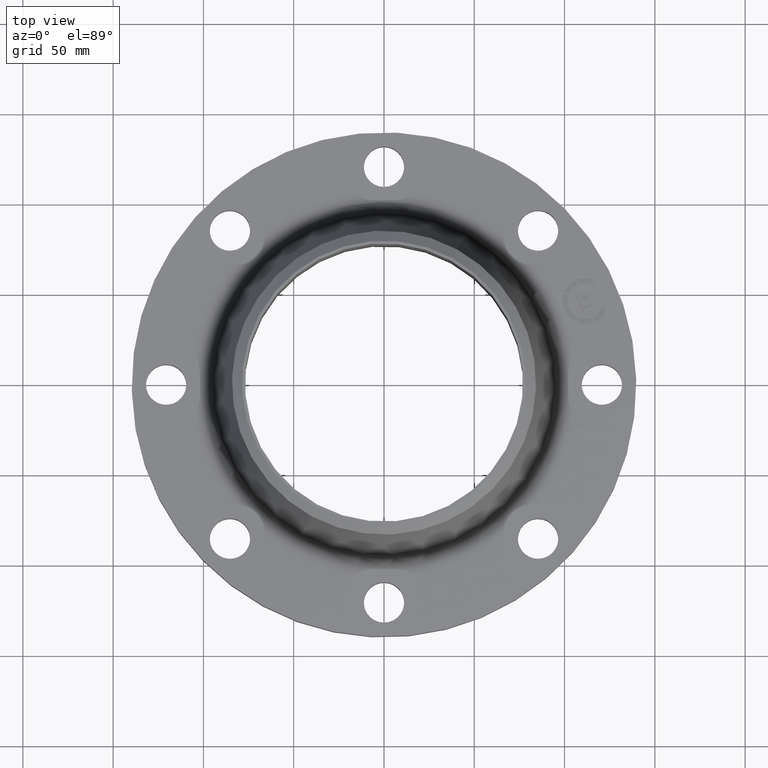
[diagram: clean part render]
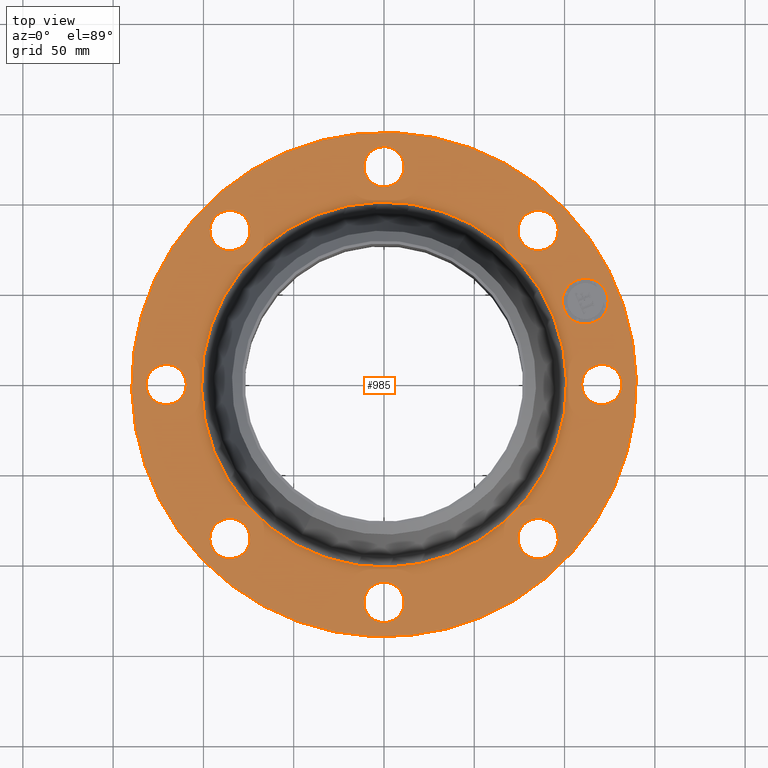
[diagram: same view with one face highlighted and labeled with its STEP entity id]
A machine part, top view. The second image highlights one B-rep face of the part: STEP entity #985.
In plain terms, the highlighted planar face has unit normal (0, 0, -1).
Its self-contained STEP definition (entity closure, byte-faithful):
#65=AXIS2_PLACEMENT_3D('Circle Axis2P3D',#63,#64,$) ;
#82=AXIS2_PLACEMENT_3D('Circle Axis2P3D',#80,#81,$) ;
#115=AXIS2_PLACEMENT_3D('Circle Axis2P3D',#113,#114,$) ;
#139=AXIS2_PLACEMENT_3D('Circle Axis2P3D',#137,#138,$) ;
#156=AXIS2_PLACEMENT_3D('Circle Axis2P3D',#154,#155,$) ;
#191=AXIS2_PLACEMENT_3D('Circle Axis2P3D',#189,#190,$) ;
#642=AXIS2_PLACEMENT_3D('Circle Axis2P3D',#640,#641,$) ;
#654=AXIS2_PLACEMENT_3D('Circle Axis2P3D',#652,#653,$) ;
#685=AXIS2_PLACEMENT_3D('Circle Axis2P3D',#683,#684,$) ;
#697=AXIS2_PLACEMENT_3D('Circle Axis2P3D',#695,#696,$) ;
#728=AXIS2_PLACEMENT_3D('Circle Axis2P3D',#726,#727,$) ;
#740=AXIS2_PLACEMENT_3D('Circle Axis2P3D',#738,#739,$) ;
#771=AXIS2_PLACEMENT_3D('Circle Axis2P3D',#769,#770,$) ;
#783=AXIS2_PLACEMENT_3D('Circle Axis2P3D',#781,#782,$) ;
#814=AXIS2_PLACEMENT_3D('Circle Axis2P3D',#812,#813,$) ;
#826=AXIS2_PLACEMENT_3D('Circle Axis2P3D',#824,#825,$) ;
#857=AXIS2_PLACEMENT_3D('Circle Axis2P3D',#855,#856,$) ;
#869=AXIS2_PLACEMENT_3D('Circle Axis2P3D',#867,#868,$) ;
#900=AXIS2_PLACEMENT_3D('Circle Axis2P3D',#898,#899,$) ;
#912=AXIS2_PLACEMENT_3D('Circle Axis2P3D',#910,#911,$) ;
#925=AXIS2_PLACEMENT_3D('Plane Axis2P3D',#922,#923,#924) ;
#969=AXIS2_PLACEMENT_3D('Circle Axis2P3D',#967,#968,$) ;
#978=AXIS2_PLACEMENT_3D('Circle Axis2P3D',#976,#977,$) ;
#46=CARTESIAN_POINT('Vertex',(4.36386367279,0.210947236987,1.)) ;
#60=CARTESIAN_POINT('Vertex',(5.13613632725,-0.210947236987,1.)) ;
#63=CARTESIAN_POINT('Axis2P3D Location',(4.75000000002,0.,1.)) ;
#80=CARTESIAN_POINT('Axis2P3D Location',(4.75000000002,0.,1.)) ;
#110=CARTESIAN_POINT('Vertex',(-2.63684046233,-4.82670409042,1.)) ;
#113=CARTESIAN_POINT('Axis2P3D Location',(0.,0.,1.)) ;
#117=CARTESIAN_POINT('Vertex',(2.63684046233,4.82670409042,1.)) ;
#137=CARTESIAN_POINT('Axis2P3D Location',(0.,0.,1.)) ;
#154=CARTESIAN_POINT('Axis2P3D Location',(0.,0.,1.)) ;
#158=CARTESIAN_POINT('Vertex',(1.90839849494,3.49330001312,1.)) ;
#160=CARTESIAN_POINT('Vertex',(-1.90839849494,-3.49330001312,1.)) ;
#189=CARTESIAN_POINT('Axis2P3D Location',(0.,0.,1.)) ;
#630=CARTESIAN_POINT('Vertex',(-3.23487981695,2.93655537345,1.)) ;
#637=CARTESIAN_POINT('Vertex',(-3.48263460435,3.78095904784,1.)) ;
#640=CARTESIAN_POINT('Axis2P3D Location',(-3.35875721065,3.35875721065,1.)) ;
#652=CARTESIAN_POINT('Axis2P3D Location',(-3.35875721065,3.35875721065,1.)) ;
#673=CARTESIAN_POINT('Vertex',(0.210947236987,-4.36386367279,1.)) ;
#680=CARTESIAN_POINT('Vertex',(-0.210947236987,-5.13613632725,1.)) ;
#683=CARTESIAN_POINT('Axis2P3D Location',(2.90853614799E-016,-4.75000000002,1.)) ;
#695=CARTESIAN_POINT('Axis2P3D Location',(2.90853614799E-016,-4.75000000002,1.)) ;
#716=CARTESIAN_POINT('Vertex',(-0.210947236987,4.36386367279,1.)) ;
#723=CARTESIAN_POINT('Vertex',(0.210947236987,5.13613632725,1.)) ;
#726=CARTESIAN_POINT('Axis2P3D Location',(-8.72560844396E-016,4.75000000002,1.)) ;
#738=CARTESIAN_POINT('Axis2P3D Location',(-8.72560844396E-016,4.75000000002,1.)) ;
#759=CARTESIAN_POINT('Vertex',(-2.93655537345,-3.23487981695,1.)) ;
#766=CARTESIAN_POINT('Vertex',(-3.78095904784,-3.48263460435,1.)) ;
#769=CARTESIAN_POINT('Axis2P3D Location',(-3.35875721065,-3.35875721065,1.)) ;
#781=CARTESIAN_POINT('Axis2P3D Location',(-3.35875721065,-3.35875721065,1.)) ;
#802=CARTESIAN_POINT('Vertex',(2.93655537345,3.23487981695,1.)) ;
#809=CARTESIAN_POINT('Vertex',(3.78095904784,3.48263460435,1.)) ;
#812=CARTESIAN_POINT('Axis2P3D Location',(3.35875721065,3.35875721065,1.)) ;
#824=CARTESIAN_POINT('Axis2P3D Location',(3.35875721065,3.35875721065,1.)) ;
#845=CARTESIAN_POINT('Vertex',(-4.36386367279,-0.210947236987,1.)) ;
#852=CARTESIAN_POINT('Vertex',(-5.13613632725,0.210947236987,1.)) ;
#855=CARTESIAN_POINT('Axis2P3D Location',(-4.75000000002,-5.81707229597E-016,1.)) ;
#867=CARTESIAN_POINT('Axis2P3D Location',(-4.75000000002,-5.81707229597E-016,1.)) ;
#888=CARTESIAN_POINT('Vertex',(3.23487981695,-2.93655537345,1.)) ;
#895=CARTESIAN_POINT('Vertex',(3.48263460435,-3.78095904784,1.)) ;
#898=CARTESIAN_POINT('Axis2P3D Location',(3.35875721065,-3.35875721065,1.)) ;
#910=CARTESIAN_POINT('Axis2P3D Location',(3.35875721065,-3.35875721065,1.)) ;
#922=CARTESIAN_POINT('Axis2P3D Location',(0.,5.50000000002,1.)) ;
#967=CARTESIAN_POINT('Axis2P3D Location',(4.38842777945,1.81774630374,1.)) ;
#971=CARTESIAN_POINT('Vertex',(4.19708650182,2.27968501123,1.)) ;
#973=CARTESIAN_POINT('Vertex',(4.57976905707,1.35580759625,1.)) ;
#976=CARTESIAN_POINT('Axis2P3D Location',(4.38842777945,1.81774630374,1.)) ;
#64=DIRECTION('Axis2P3D Direction',(0.,-0.,-0.0393700787402)) ;
#81=DIRECTION('Axis2P3D Direction',(0.,-0.,-0.0393700787402)) ;
#114=DIRECTION('Axis2P3D Direction',(0.,0.,-0.0393700787402)) ;
#138=DIRECTION('Axis2P3D Direction',(0.,0.,-0.0393700787402)) ;
#155=DIRECTION('Axis2P3D Direction',(0.,0.,-0.0393700787402)) ;
#190=DIRECTION('Axis2P3D Direction',(0.,0.,-0.0393700787402)) ;
#641=DIRECTION('Axis2P3D Direction',(0.,0.,-0.0393700787402)) ;
#653=DIRECTION('Axis2P3D Direction',(0.,0.,-0.0393700787402)) ;
#684=DIRECTION('Axis2P3D Direction',(0.,-0.,-0.0393700787402)) ;
#696=DIRECTION('Axis2P3D Direction',(0.,-0.,-0.0393700787402)) ;
#727=DIRECTION('Axis2P3D Direction',(0.,0.,-0.0393700787402)) ;
#739=DIRECTION('Axis2P3D Direction',(0.,0.,-0.0393700787402)) ;
#770=DIRECTION('Axis2P3D Direction',(-0.,0.,-0.0393700787402)) ;
#782=DIRECTION('Axis2P3D Direction',(-0.,0.,-0.0393700787402)) ;
#813=DIRECTION('Axis2P3D Direction',(0.,0.,-0.0393700787402)) ;
#825=DIRECTION('Axis2P3D Direction',(0.,0.,-0.0393700787402)) ;
#856=DIRECTION('Axis2P3D Direction',(-0.,0.,-0.0393700787402)) ;
#868=DIRECTION('Axis2P3D Direction',(-0.,0.,-0.0393700787402)) ;
#899=DIRECTION('Axis2P3D Direction',(0.,-0.,-0.0393700787402)) ;
#911=DIRECTION('Axis2P3D Direction',(0.,-0.,-0.0393700787402)) ;
#923=DIRECTION('Axis2P3D Direction',(0.,0.,-0.0393700787402)) ;
#924=DIRECTION('Axis2P3D XDirection',(0.0393700787402,0.,0.)) ;
#968=DIRECTION('Axis2P3D Direction',(0.,0.,-0.0393700787402)) ;
#977=DIRECTION('Axis2P3D Direction',(0.,0.,-0.0393700787402)) ;
#928=ORIENTED_EDGE('',*,*,#141,.F.) ;
#929=ORIENTED_EDGE('',*,*,#119,.F.) ;
#932=ORIENTED_EDGE('',*,*,#67,.T.) ;
#933=ORIENTED_EDGE('',*,*,#84,.T.) ;
#936=ORIENTED_EDGE('',*,*,#193,.T.) ;
#937=ORIENTED_EDGE('',*,*,#162,.T.) ;
#940=ORIENTED_EDGE('',*,*,#914,.T.) ;
#941=ORIENTED_EDGE('',*,*,#902,.T.) ;
#944=ORIENTED_EDGE('',*,*,#699,.T.) ;
#945=ORIENTED_EDGE('',*,*,#687,.T.) ;
#948=ORIENTED_EDGE('',*,*,#785,.T.) ;
#949=ORIENTED_EDGE('',*,*,#773,.T.) ;
#952=ORIENTED_EDGE('',*,*,#871,.T.) ;
#953=ORIENTED_EDGE('',*,*,#859,.T.) ;
#956=ORIENTED_EDGE('',*,*,#656,.T.) ;
#957=ORIENTED_EDGE('',*,*,#644,.T.) ;
#960=ORIENTED_EDGE('',*,*,#742,.T.) ;
#961=ORIENTED_EDGE('',*,*,#730,.T.) ;
#964=ORIENTED_EDGE('',*,*,#828,.T.) ;
#965=ORIENTED_EDGE('',*,*,#816,.T.) ;
#982=ORIENTED_EDGE('',*,*,#975,.T.) ;
#983=ORIENTED_EDGE('',*,*,#980,.T.) ;
#934=FACE_BOUND('',#931,.T.) ;
#938=FACE_BOUND('',#935,.T.) ;
#942=FACE_BOUND('',#939,.T.) ;
#946=FACE_BOUND('',#943,.T.) ;
#950=FACE_BOUND('',#947,.T.) ;
#954=FACE_BOUND('',#951,.T.) ;
#958=FACE_BOUND('',#955,.T.) ;
#962=FACE_BOUND('',#959,.T.) ;
#966=FACE_BOUND('',#963,.T.) ;
#984=FACE_BOUND('',#981,.T.) ;
#985=ADVANCED_FACE('PartBody',(#930,#934,#938,#942,#946,#950,#954,#958,#962,#966,#984),#926,.F.) ;
#66=CIRCLE('generated circle',#65,0.440000000002) ;
#83=CIRCLE('generated circle',#82,0.440000000002) ;
#116=CIRCLE('generated circle',#115,5.50000000002) ;
#140=CIRCLE('generated circle',#139,5.50000000002) ;
#157=CIRCLE('generated circle',#156,3.98059415128) ;
#192=CIRCLE('generated circle',#191,3.98059415128) ;
#643=CIRCLE('generated circle',#642,0.440000000002) ;
#655=CIRCLE('generated circle',#654,0.440000000002) ;
#686=CIRCLE('generated circle',#685,0.440000000002) ;
#698=CIRCLE('generated circle',#697,0.440000000002) ;
#729=CIRCLE('generated circle',#728,0.440000000002) ;
#741=CIRCLE('generated circle',#740,0.440000000002) ;
#772=CIRCLE('generated circle',#771,0.440000000002) ;
#784=CIRCLE('generated circle',#783,0.440000000002) ;
#815=CIRCLE('generated circle',#814,0.440000000002) ;
#827=CIRCLE('generated circle',#826,0.440000000002) ;
#858=CIRCLE('generated circle',#857,0.440000000002) ;
#870=CIRCLE('generated circle',#869,0.440000000002) ;
#901=CIRCLE('generated circle',#900,0.440000000002) ;
#913=CIRCLE('generated circle',#912,0.440000000002) ;
#970=CIRCLE('generated circle',#969,0.499998853999) ;
#979=CIRCLE('generated circle',#978,0.499998853999) ;
#67=EDGE_CURVE('',#47,#61,#66,.T.) ;
#84=EDGE_CURVE('',#61,#47,#83,.T.) ;
#119=EDGE_CURVE('',#111,#118,#116,.T.) ;
#141=EDGE_CURVE('',#118,#111,#140,.T.) ;
#162=EDGE_CURVE('',#159,#161,#157,.T.) ;
#193=EDGE_CURVE('',#161,#159,#192,.T.) ;
#644=EDGE_CURVE('',#631,#638,#643,.T.) ;
#656=EDGE_CURVE('',#638,#631,#655,.T.) ;
#687=EDGE_CURVE('',#674,#681,#686,.T.) ;
#699=EDGE_CURVE('',#681,#674,#698,.T.) ;
#730=EDGE_CURVE('',#717,#724,#729,.T.) ;
#742=EDGE_CURVE('',#724,#717,#741,.T.) ;
#773=EDGE_CURVE('',#760,#767,#772,.T.) ;
#785=EDGE_CURVE('',#767,#760,#784,.T.) ;
#816=EDGE_CURVE('',#803,#810,#815,.T.) ;
#828=EDGE_CURVE('',#810,#803,#827,.T.) ;
#859=EDGE_CURVE('',#846,#853,#858,.T.) ;
#871=EDGE_CURVE('',#853,#846,#870,.T.) ;
#902=EDGE_CURVE('',#889,#896,#901,.T.) ;
#914=EDGE_CURVE('',#896,#889,#913,.T.) ;
#975=EDGE_CURVE('',#972,#974,#970,.T.) ;
#980=EDGE_CURVE('',#974,#972,#979,.T.) ;
#927=EDGE_LOOP('',(#928,#929)) ;
#931=EDGE_LOOP('',(#932,#933)) ;
#935=EDGE_LOOP('',(#936,#937)) ;
#939=EDGE_LOOP('',(#940,#941)) ;
#943=EDGE_LOOP('',(#944,#945)) ;
#947=EDGE_LOOP('',(#948,#949)) ;
#951=EDGE_LOOP('',(#952,#953)) ;
#955=EDGE_LOOP('',(#956,#957)) ;
#959=EDGE_LOOP('',(#960,#961)) ;
#963=EDGE_LOOP('',(#964,#965)) ;
#981=EDGE_LOOP('',(#982,#983)) ;
#930=FACE_OUTER_BOUND('',#927,.T.) ;
#926=PLANE('',#925) ;
#47=VERTEX_POINT('',#46) ;
#61=VERTEX_POINT('',#60) ;
#111=VERTEX_POINT('',#110) ;
#118=VERTEX_POINT('',#117) ;
#159=VERTEX_POINT('',#158) ;
#161=VERTEX_POINT('',#160) ;
#631=VERTEX_POINT('',#630) ;
#638=VERTEX_POINT('',#637) ;
#674=VERTEX_POINT('',#673) ;
#681=VERTEX_POINT('',#680) ;
#717=VERTEX_POINT('',#716) ;
#724=VERTEX_POINT('',#723) ;
#760=VERTEX_POINT('',#759) ;
#767=VERTEX_POINT('',#766) ;
#803=VERTEX_POINT('',#802) ;
#810=VERTEX_POINT('',#809) ;
#846=VERTEX_POINT('',#845) ;
#853=VERTEX_POINT('',#852) ;
#889=VERTEX_POINT('',#888) ;
#896=VERTEX_POINT('',#895) ;
#972=VERTEX_POINT('',#971) ;
#974=VERTEX_POINT('',#973) ;